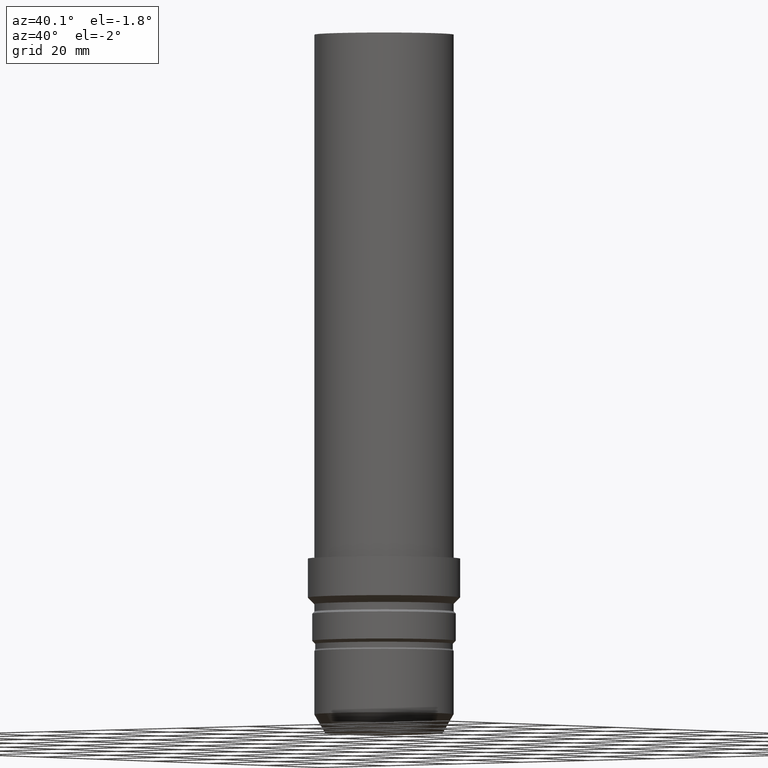
[diagram: clean part render]
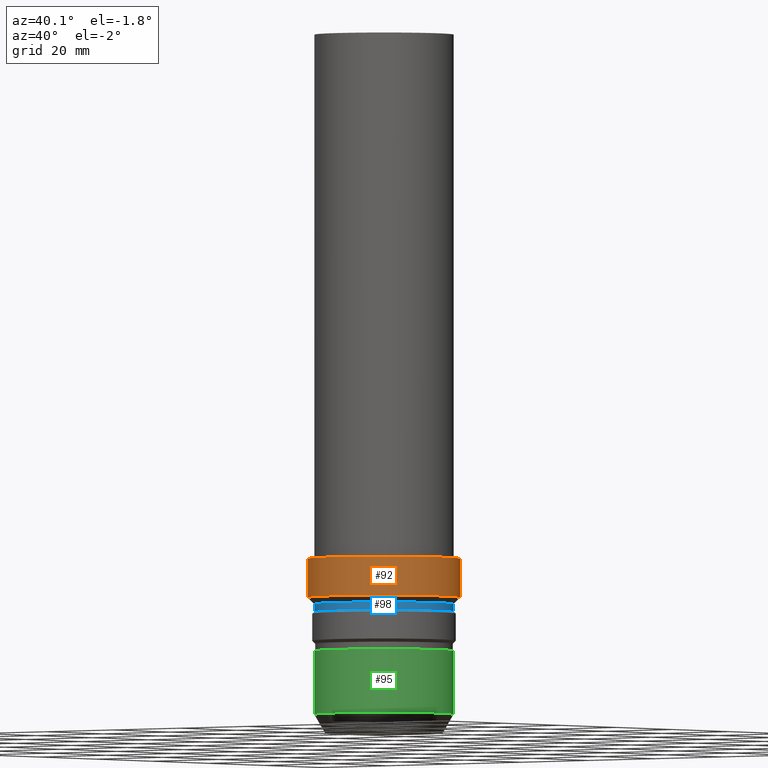
[diagram: same view with three faces highlighted in distinct colors, each labeled with its STEP entity id]
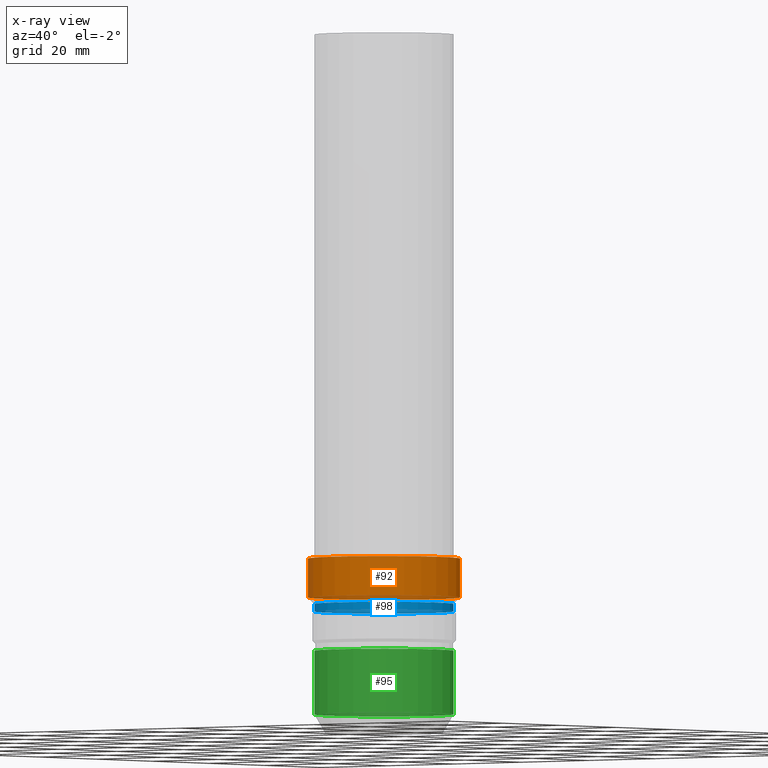
[diagram: x-ray of the same camera — body ghosted, the three highlighted faces saturated]
A machine part, auxiliary view with three faces highlighted in distinct colors.
The next image is the same camera in x-ray (body ghosted, the three faces saturated) — at least one of them is partly hidden behind the body in this view.
Their STEP definitions:

[orange] entity #92 — the highlighted cylindrical surface (bore or boss wall) has radius 17.5 mm, axis along (0, -0, -1).
#70=EDGE_CURVE('Unnamed[1]',#168,#168,#169,.T.);
#92=ADVANCED_FACE('Unnamed[1]',(#200,#201),#202,.T.);
#111=EDGE_CURVE('Unnamed[1]',#231,#231,#232,.T.);
#168=VERTEX_POINT('',#292);
#169=CIRCLE('',#293,17.5000000000002);
#200=FACE_BOUND('',#331,.T.);
#201=FACE_BOUND('',#332,.T.);
#202=CYLINDRICAL_SURFACE('',#333,17.5000000000002);
#231=VERTEX_POINT('',#370);
#232=CIRCLE('',#371,17.5000000000002);
#292=CARTESIAN_POINT('',(-1.90432577267407E-015,17.5000000000002,31.099999999999));
#293=AXIS2_PLACEMENT_3D('',#425,#426,#427);
#331=EDGE_LOOP('',(#459));
#332=EDGE_LOOP('',(#460));
#333=AXIS2_PLACEMENT_3D('',#461,#462,#463);
#370=CARTESIAN_POINT('',(-2.44929359829466E-015,17.5000000000002,39.9999999999992));
#371=AXIS2_PLACEMENT_3D('',#494,#495,#496);
#425=CARTESIAN_POINT('',(-1.90432577267407E-015,4.25725830225517E-014,31.099999999999));
#426=DIRECTION('',(6.12323399573677E-017,-1.36889334477662E-015,-1.0));
#427=DIRECTION('',(7.89933899219705E-032,1.0,-1.36889334477662E-015));
#459=ORIENTED_EDGE('',*,*,#70,.F.);
#460=ORIENTED_EDGE('',*,*,#111,.T.);
#461=CARTESIAN_POINT('',(-2.17680968548437E-015,4.86641584068079E-014,35.5499999999991));
#462=DIRECTION('',(6.12323399573677E-017,-1.36889334477662E-015,-1.0));
#463=DIRECTION('',(7.89933899219705E-032,1.0,-1.36889334477662E-015));
#494=CARTESIAN_POINT('',(-2.44929359829466E-015,5.47557337910641E-014,39.9999999999992));
#495=DIRECTION('',(6.12323399573677E-017,-1.36889334477663E-015,-1.0));
#496=DIRECTION('',(7.89933899219705E-032,1.0,-1.36889334477663E-015));

[blue] entity #98 — the highlighted cylindrical surface (bore or boss wall) has radius 16 mm, axis along (0, -0, -1).
#98=ADVANCED_FACE('Unnamed[1]',(#210,#211),#212,.T.);
#100=EDGE_CURVE('Unnamed[1]',#214,#214,#215,.T.);
#121=EDGE_CURVE('Unnamed[1]',#246,#246,#247,.T.);
#210=FACE_BOUND('',#343,.T.);
#211=FACE_BOUND('',#344,.T.);
#212=CYLINDRICAL_SURFACE('',#345,16.0000000000002);
#214=VERTEX_POINT('',#348);
#215=CIRCLE('',#349,16.0000000000002);
#246=VERTEX_POINT('',#389);
#247=CIRCLE('',#390,16.0000000000002);
#343=EDGE_LOOP('',(#471));
#344=EDGE_LOOP('',(#472));
#345=AXIS2_PLACEMENT_3D('',#473,#474,#475);
#348=CARTESIAN_POINT('',(-1.70838228481049E-015,16.0000000000002,27.8999999999988));
#349=AXIS2_PLACEMENT_3D('',#476,#477,#478);
#389=CARTESIAN_POINT('',(-1.81247726273802E-015,16.0000000000002,29.5999999999989));
#390=AXIS2_PLACEMENT_3D('',#511,#512,#513);
#471=ORIENTED_EDGE('',*,*,#100,.F.);
#472=ORIENTED_EDGE('',*,*,#121,.T.);
#473=CARTESIAN_POINT('',(-1.76042977377425E-015,3.93556836623266E-014,28.7499999999989));
#474=DIRECTION('',(6.12323399573677E-017,-1.36889334477659E-015,-1.0));
#475=DIRECTION('',(7.89933899219678E-032,1.0,-1.36889334477659E-015));
#476=CARTESIAN_POINT('',(-1.70838228481049E-015,3.81921243192664E-014,27.8999999999989));
#477=DIRECTION('',(6.12323399573677E-017,-1.36889334477659E-015,-1.0));
#478=DIRECTION('',(7.89933899219678E-032,1.0,-1.36889334477659E-015));
#511=CARTESIAN_POINT('',(-1.81247726273802E-015,4.05192430053868E-014,29.599999999999));
#512=DIRECTION('',(6.12323399573677E-017,-1.36889334477659E-015,-1.0));
#513=DIRECTION('',(7.89933899219678E-032,1.0,-1.36889334477659E-015));

[green] entity #95 — the highlighted cylindrical surface (bore or boss wall) has radius 16 mm, axis along (0, -0, -1).
#68=EDGE_CURVE('Unnamed[1]',#165,#165,#166,.T.);
#75=EDGE_CURVE('Unnamed[1]',#175,#175,#176,.T.);
#95=ADVANCED_FACE('Unnamed[1]',(#205,#206),#207,.T.);
#165=VERTEX_POINT('',#288);
#166=CIRCLE('',#289,16.0);
#175=VERTEX_POINT('',#301);
#176=CIRCLE('',#302,16.0);
#205=FACE_BOUND('',#337,.T.);
#206=FACE_BOUND('',#338,.T.);
#207=CYLINDRICAL_SURFACE('',#339,16.0);
#288=CARTESIAN_POINT('',(-1.15444942240699E-015,16.0,18.8535898384866));
#289=AXIS2_PLACEMENT_3D('',#422,#423,#424);
#301=CARTESIAN_POINT('',(-2.65143809681212E-016,16.0,4.33012701892196));
#302=AXIS2_PLACEMENT_3D('',#433,#434,#435);
#337=EDGE_LOOP('',(#465));
#338=EDGE_LOOP('',(#466));
#339=AXIS2_PLACEMENT_3D('',#467,#468,#469);
#422=CARTESIAN_POINT('',(-1.15444942240699E-015,2.58085536550527E-014,18.8535898384867));
#423=DIRECTION('',(6.12323399573677E-017,-1.36889334477661E-015,-1.0));
#424=DIRECTION('',(7.89933899219689E-032,1.0,-1.36889334477661E-015));
#433=CARTESIAN_POINT('',(-2.65143809681214E-016,5.92748205823976E-015,4.33012701892198));
#434=DIRECTION('',(6.12323399573676E-017,-1.36889334477661E-015,-1.0));
#435=DIRECTION('',(7.89933899219688E-032,1.0,-1.36889334477661E-015));
#465=ORIENTED_EDGE('',*,*,#75,.F.);
#466=ORIENTED_EDGE('',*,*,#68,.T.);
#467=CARTESIAN_POINT('',(-7.09796616044102E-016,1.58680178566463E-014,11.5918584287043));
#468=DIRECTION('',(6.12323399573676E-017,-1.36889334477661E-015,-1.0));
#469=DIRECTION('',(7.89933899219689E-032,1.0,-1.36889334477661E-015));